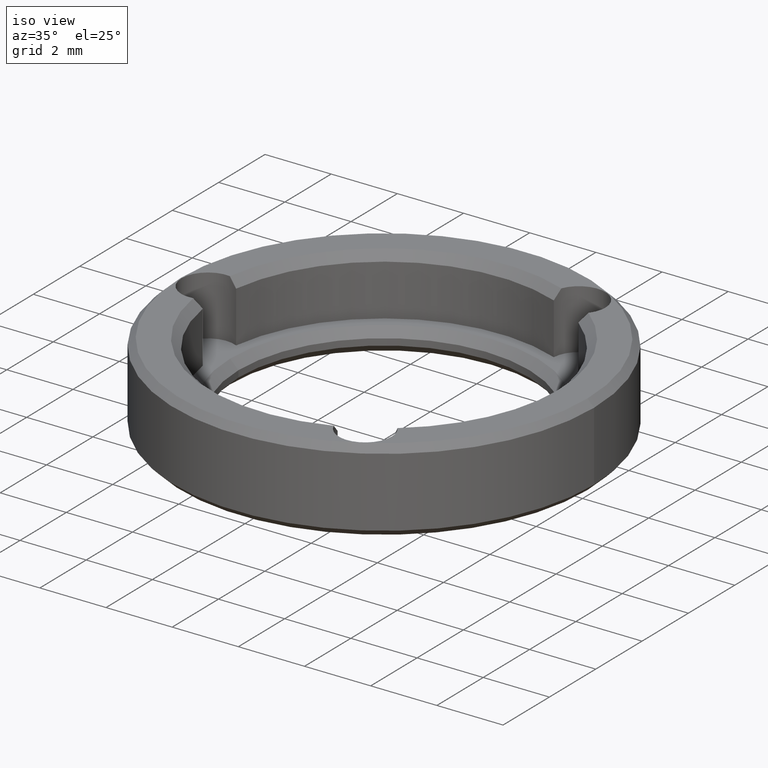
[diagram: clean part render]
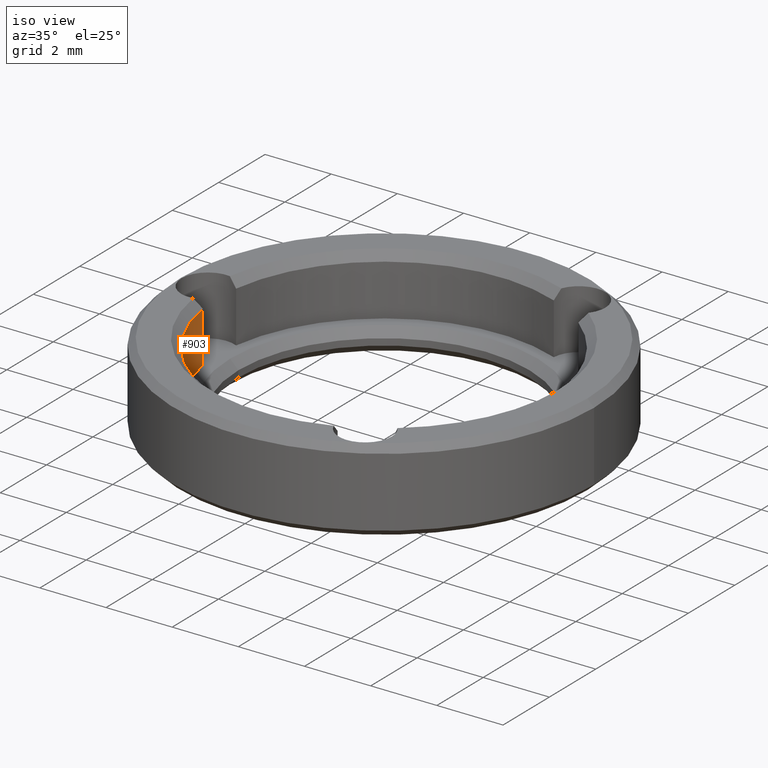
[diagram: same view with one face highlighted and labeled with its STEP entity id]
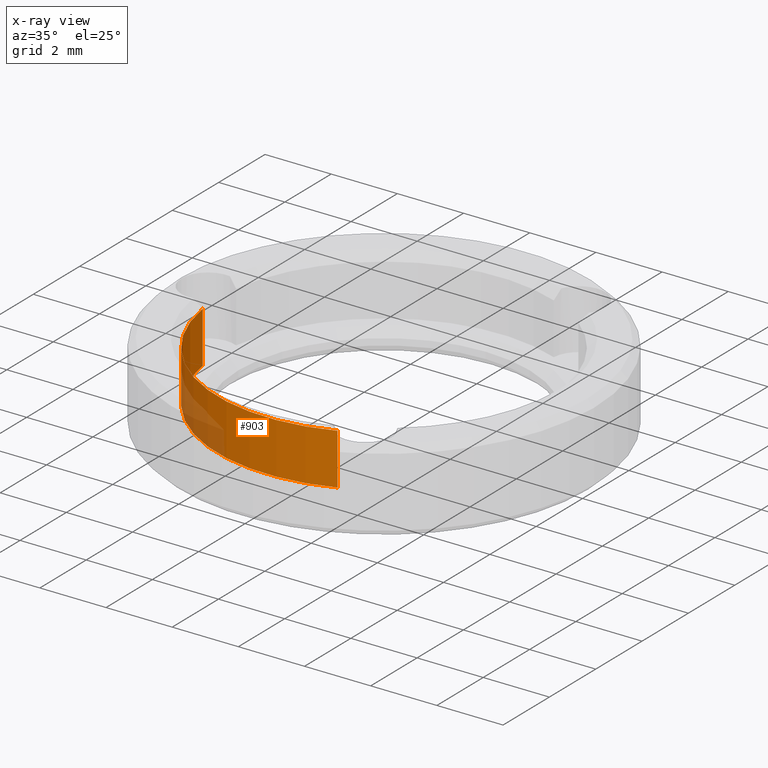
[diagram: x-ray of the same camera — body ghosted, the highlighted face saturated]
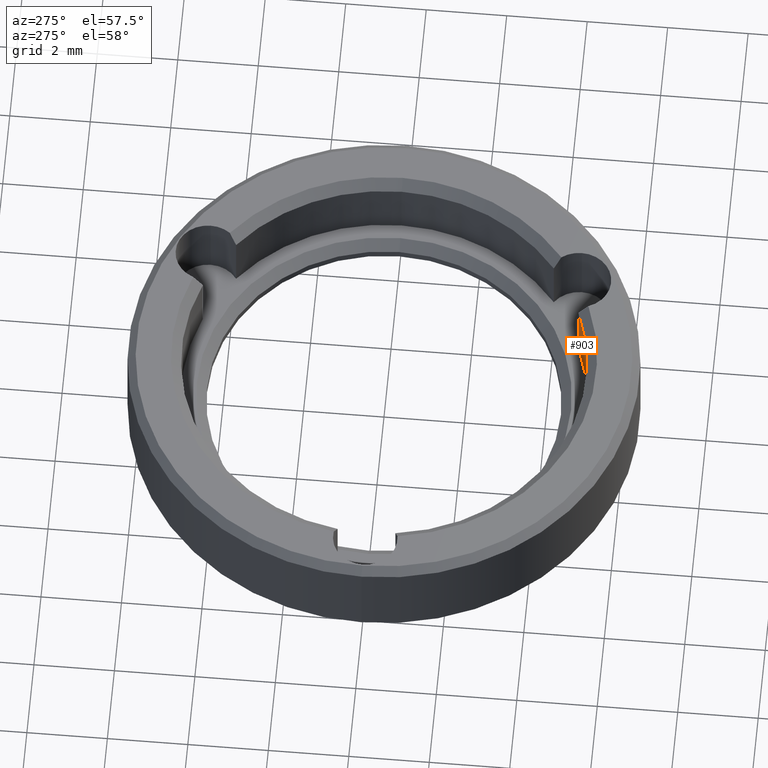
[diagram: same view with one face highlighted and labeled with its STEP entity id]
A machine part, iso view. The second image highlights one B-rep face of the part: STEP entity #903.
The next image is the same camera in x-ray: the body ghosted, the highlighted face saturated — about 14% of this face is hidden behind the body in this view.
A second angle (auxiliary view) of the same face is appended — the face is thin or edge-on in the first view.
In plain terms, the highlighted cylindrical surface (partial cylindrical patch) has radius 5.025 mm, axis along (-0, -0, 1).
Its self-contained STEP definition (entity closure, byte-faithful):
#13 = DIRECTION ( 'NONE',  ( 1.000000000000000000, 0.000000000000000000, 0.000000000000000000 ) ) ;
#28 = VERTEX_POINT ( 'NONE', #768 ) ;
#69 = EDGE_CURVE ( 'NONE', #28, #118, #828, .T. ) ;
#73 = CIRCLE ( 'NONE', #784, 5.025000000000000355 ) ;
#85 = VERTEX_POINT ( 'NONE', #193 ) ;
#90 = AXIS2_PLACEMENT_3D ( 'NONE', #731, #535, #241 ) ;
#93 = ORIENTED_EDGE ( 'NONE', *, *, #69, .T. ) ;
#94 = CYLINDRICAL_SURFACE ( 'NONE', #90, 5.025000000000000355 ) ;
#103 = EDGE_CURVE ( 'NONE', #85, #509, #138, .T. ) ;
#107 = CARTESIAN_POINT ( 'NONE',  ( 0.000000000000000000, 0.000000000000000000, 0.7000000000000000666 ) ) ;
#118 = VERTEX_POINT ( 'NONE', #694 ) ;
#138 = LINE ( 'NONE', #686, #190 ) ;
#165 = FACE_OUTER_BOUND ( 'NONE', #497, .T. ) ;
#175 = ORIENTED_EDGE ( 'NONE', *, *, #887, .F. ) ;
#190 = VECTOR ( 'NONE', #619, 1000.000000000000000 ) ;
#193 = CARTESIAN_POINT ( 'NONE',  ( 1.864375986210773162, -4.666339805676457786, 2.249999999999997780 ) ) ;
#200 = EDGE_CURVE ( 'NONE', #118, #85, #73, .T. ) ;
#208 = DIRECTION ( 'NONE',  ( -0.000000000000000000, -0.000000000000000000, 1.000000000000000000 ) ) ;
#241 = DIRECTION ( 'NONE',  ( 1.000000000000000000, 0.000000000000000000, 0.000000000000000000 ) ) ;
#264 = CARTESIAN_POINT ( 'NONE',  ( 1.864375986210773162, -4.666339805676459562, 0.7000000000000000666 ) ) ;
#289 = CARTESIAN_POINT ( 'NONE',  ( 0.000000000000000000, 0.000000000000000000, 2.249999999999998224 ) ) ;
#438 = ORIENTED_EDGE ( 'NONE', *, *, #200, .T. ) ;
#497 = EDGE_LOOP ( 'NONE', ( #438, #854, #175, #93 ) ) ;
#509 = VERTEX_POINT ( 'NONE', #264 ) ;
#524 = DIRECTION ( 'NONE',  ( 0.000000000000000000, 0.000000000000000000, 1.000000000000000000 ) ) ;
#535 = DIRECTION ( 'NONE',  ( -0.000000000000000000, -0.000000000000000000, 1.000000000000000000 ) ) ;
#549 = CIRCLE ( 'NONE', #759, 5.025000000000000355 ) ;
#619 = DIRECTION ( 'NONE',  ( -0.000000000000000000, 0.000000000000000000, -1.000000000000000000 ) ) ;
#686 = CARTESIAN_POINT ( 'NONE',  ( 1.864375986210773384, -4.666339805676459562, 1.600000000000000311 ) ) ;
#694 = CARTESIAN_POINT ( 'NONE',  ( -4.973356807511737365, -0.7185729365740577412, 2.249999999999998224 ) ) ;
#731 = CARTESIAN_POINT ( 'NONE',  ( 0.000000000000000000, 0.000000000000000000, 0.7000000000000000666 ) ) ;
#759 = AXIS2_PLACEMENT_3D ( 'NONE', #107, #524, #809 ) ;
#768 = CARTESIAN_POINT ( 'NONE',  ( -4.973356807511738253, -0.7185729365740582963, 0.7000000000000000666 ) ) ;
#784 = AXIS2_PLACEMENT_3D ( 'NONE', #289, #787, #13 ) ;
#787 = DIRECTION ( 'NONE',  ( 0.000000000000000000, 0.000000000000000000, 1.000000000000000000 ) ) ;
#809 = DIRECTION ( 'NONE',  ( 1.000000000000000000, 0.000000000000000000, 0.000000000000000000 ) ) ;
#828 = LINE ( 'NONE', #834, #829 ) ;
#829 = VECTOR ( 'NONE', #208, 1000.000000000000000 ) ;
#834 = CARTESIAN_POINT ( 'NONE',  ( -4.973356807511738253, -0.7185729365740584074, 1.600000000000000311 ) ) ;
#854 = ORIENTED_EDGE ( 'NONE', *, *, #103, .T. ) ;
#887 = EDGE_CURVE ( 'NONE', #28, #509, #549, .T. ) ;
#903 = ADVANCED_FACE ( 'NONE', ( #165 ), #94, .F. ) ;